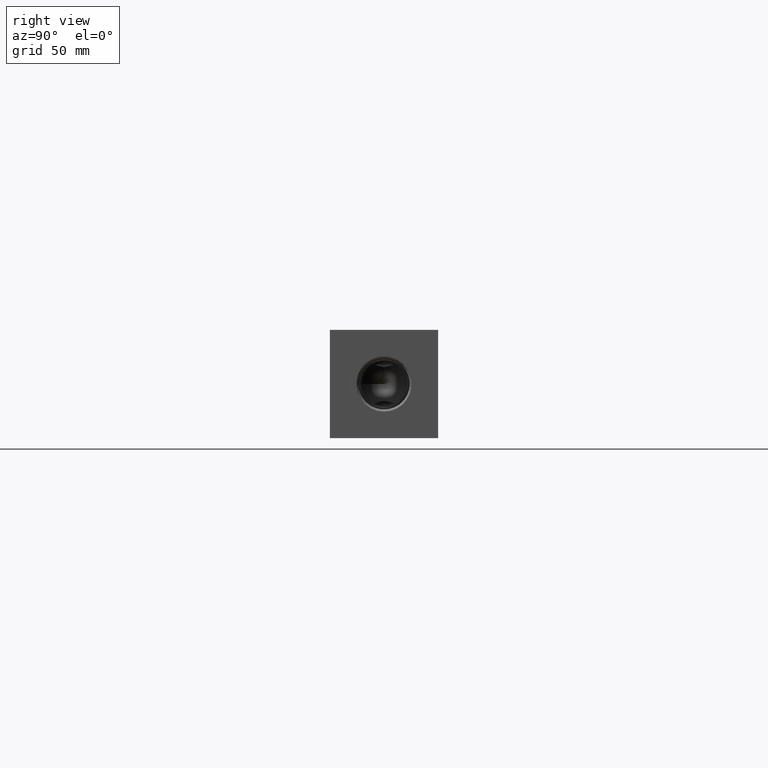
[diagram: clean part render]
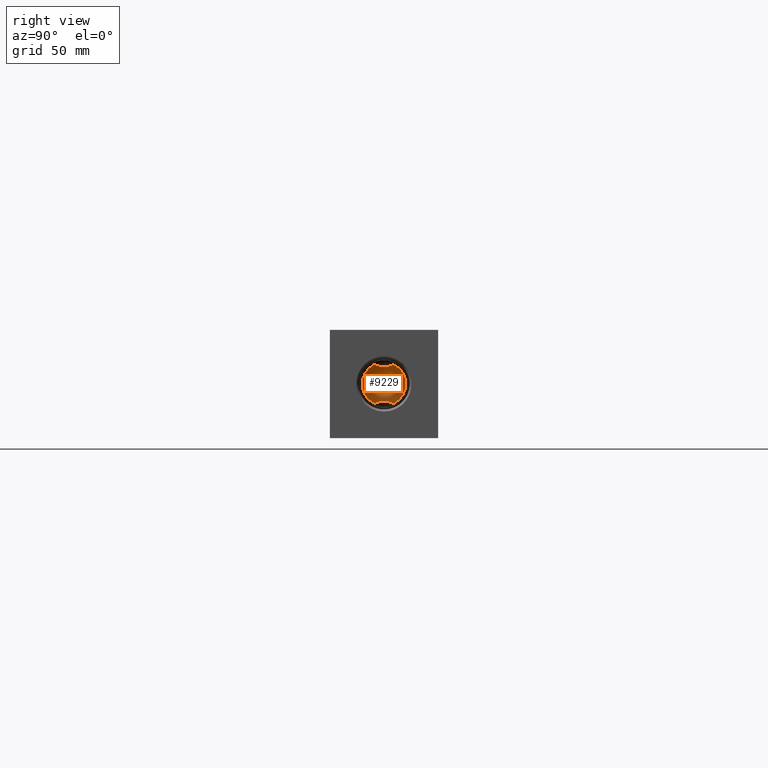
[diagram: same view with one face highlighted and labeled with its STEP entity id]
A machine part, right view. The second image highlights one B-rep face of the part: STEP entity #9229.
In plain terms, the highlighted conical surface has half-angle 60 deg.
Its self-contained STEP definition (entity closure, byte-faithful):
#26=CONICAL_SURFACE('',#9632,5.7531,1.0471975511966);
#175=CIRCLE('',#9629,11.5062);
#176=CIRCLE('',#9630,11.5062);
#177=CIRCLE('',#9631,11.5062);
#1073=FACE_OUTER_BOUND('',#1597,.T.);
#1597=EDGE_LOOP('',(#7609,#7610,#7611,#7612,#7613,#7614,#7615,#7616,#7617,
#7618,#7619));
#2447=LINE('',#15583,#3226);
#3226=VECTOR('',#11157,5.7531);
#3601=B_SPLINE_CURVE_WITH_KNOTS('',3,(#15535,#15536,#15537,#15538),
 .UNSPECIFIED.,.F.,.F.,(4,4),(4.41050570858159,4.42262273878902),
 .UNSPECIFIED.);
#3602=B_SPLINE_CURVE_WITH_KNOTS('',3,(#15540,#15541,#15542,#15543,#15544,
#15545,#15546,#15547,#15548,#15549,#15550,#15551,#15552,#15553),
 .UNSPECIFIED.,.F.,.F.,(4,2,2,2,2,2,4),(2.13486139282114,2.38996228479549,
2.56067387656659,2.7313854683377,2.90209706010881,3.07280865187991,3.32790954385426),
 .UNSPECIFIED.);
#3603=B_SPLINE_CURVE_WITH_KNOTS('',3,(#15554,#15555,#15556,#15557),
 .UNSPECIFIED.,.F.,.F.,(4,4),(5.70043914620522,5.71255617641265),
 .UNSPECIFIED.);
#3604=B_SPLINE_CURVE_WITH_KNOTS('',3,(#15559,#15560,#15561,#15562),
 .UNSPECIFIED.,.F.,.F.,(4,4),(4.41050570858158,4.42262273878902),
 .UNSPECIFIED.);
#3605=B_SPLINE_CURVE_WITH_KNOTS('',3,(#15564,#15565,#15566,#15567,#15568,
#15569,#15570,#15571,#15572,#15573,#15574,#15575,#15576,#15577),
 .UNSPECIFIED.,.F.,.F.,(4,2,2,2,2,2,4),(2.13486139282115,2.38996228479549,
2.56067387656659,2.7313854683377,2.90209706010881,3.07280865187991,3.32790954385426),
 .UNSPECIFIED.);
#3606=B_SPLINE_CURVE_WITH_KNOTS('',3,(#15578,#15579,#15580,#15581),
 .UNSPECIFIED.,.F.,.F.,(4,4),(5.70043914620522,5.71255617641266),
 .UNSPECIFIED.);
#4224=VERTEX_POINT('',#15504);
#4225=VERTEX_POINT('',#15506);
#4226=VERTEX_POINT('',#15508);
#4227=VERTEX_POINT('',#15519);
#4228=VERTEX_POINT('',#15521);
#4229=VERTEX_POINT('',#15534);
#4230=VERTEX_POINT('',#15539);
#4231=VERTEX_POINT('',#15558);
#4232=VERTEX_POINT('',#15563);
#4233=VERTEX_POINT('',#15582);
#5412=EDGE_CURVE('',#4225,#4224,#175,.T.);
#5414=EDGE_CURVE('',#4227,#4226,#176,.T.);
#5416=EDGE_CURVE('',#4224,#4228,#177,.T.);
#5417=EDGE_CURVE('',#4229,#4228,#3601,.T.);
#5418=EDGE_CURVE('',#4230,#4229,#3602,.T.);
#5419=EDGE_CURVE('',#4227,#4230,#3603,.T.);
#5420=EDGE_CURVE('',#4231,#4226,#3604,.T.);
#5421=EDGE_CURVE('',#4232,#4231,#3605,.T.);
#5422=EDGE_CURVE('',#4225,#4232,#3606,.T.);
#5423=EDGE_CURVE('',#4224,#4233,#2447,.T.);
#7609=ORIENTED_EDGE('',*,*,#5417,.F.);
#7610=ORIENTED_EDGE('',*,*,#5418,.F.);
#7611=ORIENTED_EDGE('',*,*,#5419,.F.);
#7612=ORIENTED_EDGE('',*,*,#5414,.T.);
#7613=ORIENTED_EDGE('',*,*,#5420,.F.);
#7614=ORIENTED_EDGE('',*,*,#5421,.F.);
#7615=ORIENTED_EDGE('',*,*,#5422,.F.);
#7616=ORIENTED_EDGE('',*,*,#5412,.T.);
#7617=ORIENTED_EDGE('',*,*,#5423,.T.);
#7618=ORIENTED_EDGE('',*,*,#5423,.F.);
#7619=ORIENTED_EDGE('',*,*,#5416,.T.);
#9229=ADVANCED_FACE('',(#1073),#26,.F.);
#9629=AXIS2_PLACEMENT_3D('',#15507,#11149,#11150);
#9630=AXIS2_PLACEMENT_3D('',#15520,#11151,#11152);
#9631=AXIS2_PLACEMENT_3D('',#15532,#11153,#11154);
#9632=AXIS2_PLACEMENT_3D('',#15533,#11155,#11156);
#11149=DIRECTION('center_axis',(1.,0.,0.));
#11150=DIRECTION('ref_axis',(0.,1.,0.));
#11151=DIRECTION('center_axis',(1.,0.,0.));
#11152=DIRECTION('ref_axis',(0.,1.,0.));
#11153=DIRECTION('center_axis',(1.,0.,0.));
#11154=DIRECTION('ref_axis',(0.,1.,0.));
#11155=DIRECTION('center_axis',(1.,0.,0.));
#11156=DIRECTION('ref_axis',(0.,1.,0.));
#11157=DIRECTION('',(-0.5,0.866025403784439,1.06057523872491E-16));
#15504=CARTESIAN_POINT('',(346.96778,17.0688,28.575));
#15506=CARTESIAN_POINT('',(346.96778,23.6648179298929,38.980899791868));
#15507=CARTESIAN_POINT('Origin',(346.96778,28.575,28.575));
#15508=CARTESIAN_POINT('',(346.96778,33.4851820701071,38.980899791868));
#15519=CARTESIAN_POINT('',(346.96778,33.4851820701071,18.169100208132));
#15520=CARTESIAN_POINT('Origin',(346.96778,28.575,28.575));
#15521=CARTESIAN_POINT('',(346.96778,23.6648179298929,18.169100208132));
#15532=CARTESIAN_POINT('Origin',(346.96778,28.575,28.575));
#15533=CARTESIAN_POINT('Origin',(343.646226166325,28.575,28.575));
#15534=CARTESIAN_POINT('',(346.926048011912,23.6038172815577,18.27831));
#15535=CARTESIAN_POINT('Ctrl Pts',(346.926048011912,23.6038172815577,18.27831));
#15536=CARTESIAN_POINT('Ctrl Pts',(346.939970778068,23.6239852200994,18.2417946987519));
#15537=CARTESIAN_POINT('Ctrl Pts',(346.953883135546,23.6443193148737,18.2053879910147));
#15538=CARTESIAN_POINT('Ctrl Pts',(346.96778,23.6648179298929,18.169100208132));
#15539=CARTESIAN_POINT('',(346.926048011912,33.5461827184423,18.27831));
#15540=CARTESIAN_POINT('Ctrl Pts',(346.926048011912,33.5461827184423,18.27831));
#15541=CARTESIAN_POINT('Ctrl Pts',(346.616752969931,32.8916589766325,18.5571919697843));
#15542=CARTESIAN_POINT('Ctrl Pts',(346.332113496713,32.2376062403381,18.8184897635343));
#15543=CARTESIAN_POINT('Ctrl Pts',(345.929505189543,31.1055740748931,19.1947400297727));
#15544=CARTESIAN_POINT('Ctrl Pts',(345.787891946177,30.6420510992736,19.3292020261185));
#15545=CARTESIAN_POINT('Ctrl Pts',(345.576298313636,29.6612915120631,19.5319987044316));
#15546=CARTESIAN_POINT('Ctrl Pts',(345.506271750225,29.144038639237,19.6002065442912));
#15547=CARTESIAN_POINT('Ctrl Pts',(345.506271750225,28.005961360763,19.6002065442912));
#15548=CARTESIAN_POINT('Ctrl Pts',(345.576298313636,27.4887084879369,19.5319987044316));
#15549=CARTESIAN_POINT('Ctrl Pts',(345.787891946177,26.5079489007264,19.3292020261185));
#15550=CARTESIAN_POINT('Ctrl Pts',(345.929505189543,26.044425925107,19.1947400297727));
#15551=CARTESIAN_POINT('Ctrl Pts',(346.332113496713,24.9123937596619,18.8184897635343));
#15552=CARTESIAN_POINT('Ctrl Pts',(346.616752969931,24.2583410233675,18.5571919697843));
#15553=CARTESIAN_POINT('Ctrl Pts',(346.926048011912,23.6038172815576,18.27831));
#15554=CARTESIAN_POINT('Ctrl Pts',(346.96778,33.4851820701071,18.169100208132));
#15555=CARTESIAN_POINT('Ctrl Pts',(346.953883102996,33.5056807331398,18.2053880760108));
#15556=CARTESIAN_POINT('Ctrl Pts',(346.939970819729,33.5260147195523,18.2417945894875));
#15557=CARTESIAN_POINT('Ctrl Pts',(346.926048011912,33.5461827184423,18.27831));
#15558=CARTESIAN_POINT('',(346.926048011912,33.5461827184423,38.87169));
#15559=CARTESIAN_POINT('Ctrl Pts',(346.926048011912,33.5461827184423,38.87169));
#15560=CARTESIAN_POINT('Ctrl Pts',(346.939970778068,33.5260147799006,38.9082053012481));
#15561=CARTESIAN_POINT('Ctrl Pts',(346.953883135546,33.5056806851263,38.9446120089853));
#15562=CARTESIAN_POINT('Ctrl Pts',(346.96778,33.4851820701071,38.980899791868));
#15563=CARTESIAN_POINT('',(346.926048011912,23.6038172815577,38.87169));
#15564=CARTESIAN_POINT('Ctrl Pts',(346.926048011912,23.6038172815576,38.87169));
#15565=CARTESIAN_POINT('Ctrl Pts',(346.616752969931,24.2583410233675,38.5928080302157));
#15566=CARTESIAN_POINT('Ctrl Pts',(346.332113496714,24.9123937596619,38.3315102364657));
#15567=CARTESIAN_POINT('Ctrl Pts',(345.929505189543,26.0444259251069,37.9552599702273));
#15568=CARTESIAN_POINT('Ctrl Pts',(345.787891946177,26.5079489007264,37.8207979738815));
#15569=CARTESIAN_POINT('Ctrl Pts',(345.576298313636,27.4887084879369,37.6180012955684));
#15570=CARTESIAN_POINT('Ctrl Pts',(345.506271750225,28.005961360763,37.5497934557088));
#15571=CARTESIAN_POINT('Ctrl Pts',(345.506271750225,29.144038639237,37.5497934557088));
#15572=CARTESIAN_POINT('Ctrl Pts',(345.576298313636,29.6612915120631,37.6180012955684));
#15573=CARTESIAN_POINT('Ctrl Pts',(345.787891946177,30.6420510992736,37.8207979738815));
#15574=CARTESIAN_POINT('Ctrl Pts',(345.929505189543,31.1055740748931,37.9552599702273));
#15575=CARTESIAN_POINT('Ctrl Pts',(346.332113496714,32.2376062403381,38.3315102364657));
#15576=CARTESIAN_POINT('Ctrl Pts',(346.616752969931,32.8916589766325,38.5928080302157));
#15577=CARTESIAN_POINT('Ctrl Pts',(346.926048011912,33.5461827184423,38.87169));
#15578=CARTESIAN_POINT('Ctrl Pts',(346.96778,23.6648179298929,38.980899791868));
#15579=CARTESIAN_POINT('Ctrl Pts',(346.953883102996,23.6443192668602,38.9446119239892));
#15580=CARTESIAN_POINT('Ctrl Pts',(346.939970819729,23.6239852804477,38.9082054105125));
#15581=CARTESIAN_POINT('Ctrl Pts',(346.926048011912,23.6038172815577,38.87169));
#15582=CARTESIAN_POINT('',(340.32467233265,28.575,28.575));
#15583=CARTESIAN_POINT('',(343.646226166325,22.8219,28.575));